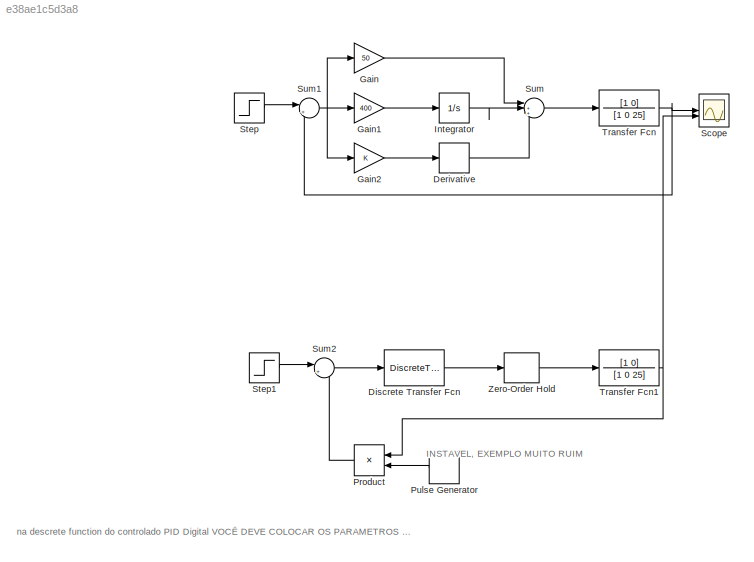
MODEL slx_e38ae1c5d3a8
KIND model
CONFIG AbsTol = auto
CONFIG EnableMultiTasking = off
CONFIG FixedStep = auto
CONFIG MaxStep = auto
CONFIG MinStep = auto
CONFIG RelTol = 1e-3
CONFIG SampleTimeConstraint = Unconstrained
CONFIG SolverName = VariableStepAuto
CONFIG StartTime = 0.0
CONFIG StopTime = 3
BLOCK [Derivative] Derivative
BLOCK [DiscreteTransferFcn] Discrete Transfer Fcn
  Denominator = [2*t -2*t 0]
  InputPortMap = u0
  Numerator = [ki*t^2+kp*t+2*kd ki*t^2-2*kp*t-4*kd 2*kd]
BLOCK [Gain] Gain
  Gain = 50
BLOCK [Gain] Gain1
  Gain = 400
BLOCK [Gain] Gain2
BLOCK [Integrator] Integrator
BLOCK [Product] Product
  NameLocation = top
BLOCK [DiscretePulseGenerator] Pulse Generator
  NameLocation = top
  Period = 10
  PulseType = Time based
  PulseWidth = 5
BLOCK [Scope] Scope
  Floating = off
  NumInputPorts = 2
  ScopeSpecificationString = Simulink.scopes.TimeScopeBlockCfg('CurrentConfiguration', extmgr.ConfigurationSet(extmgr.Configuration('Core','General UI',true),extmgr.Configuration('Core','Source UI',true),extmgr.Configuration('Sources','WiredSimulink',true),extmgr.Configuration('Visuals','Time Domain',true,'SerializedDisplays',{struct('MinYLimReal','-40.89959','MaxYLimReal','12.92173','YLabelReal','','MinYLimMag','0.00000','Ma...<+1354ch>
BLOCK [Step] Step
  SampleTime = 0
BLOCK [Step] Step1
  SampleTime = 0
BLOCK [Sum] Sum
  Inputs = |+++
BLOCK [Sum] Sum1
  Inputs = |+-
BLOCK [Sum] Sum2
  Inputs = |+-
BLOCK [TransferFcn] Transfer Fcn
  Denominator = [1 0 25]
  Numerator = [1 0]
BLOCK [TransferFcn] Transfer Fcn1
  Denominator = [1 0 25]
  Numerator = [1 0]
BLOCK [ZeroOrderHold] Zero-Order Hold
  SampleTime = -1
ANNOTATION (root): na descrete function do controlado PID Digital VOCÊ DEVE COLOCAR OS PARAMETROS DA FORMULA QUE ESTÁ NO SLIDE USANDO TAXA DE AMOSTRAGEM, KP, KI, KD
ANNOTATION (root): INSTAVEL, EXEMPLO MUITO RUIM
LINE Derivative:1 -> Sum:3
LINE Discrete Transfer Fcn:1 -> Zero-Order Hold:1
LINE Gain1:1 -> Integrator:1
LINE Gain2:1 -> Derivative:1
LINE Gain:1 -> Sum:1
LINE Integrator:1 -> Sum:2
LINE Product:1 -> Sum2:2
LINE Pulse Generator:1 -> Product:2
LINE Step1:1 -> Sum2:1
LINE Step:1 -> Sum1:1
NET Sum1:1 -> Gain1:1, Gain2:1, Gain:1
LINE Sum2:1 -> Discrete Transfer Fcn:1
LINE Sum:1 -> Transfer Fcn:1
NET Transfer Fcn1:1 -> Product:1, Scope:2
NET Transfer Fcn:1 -> Scope:1, Sum1:2
LINE Zero-Order Hold:1 -> Transfer Fcn1:1
note: NET lines group one-source signal fan-out (src -> all destinations, sorted); 1:1 wires keep LINE
